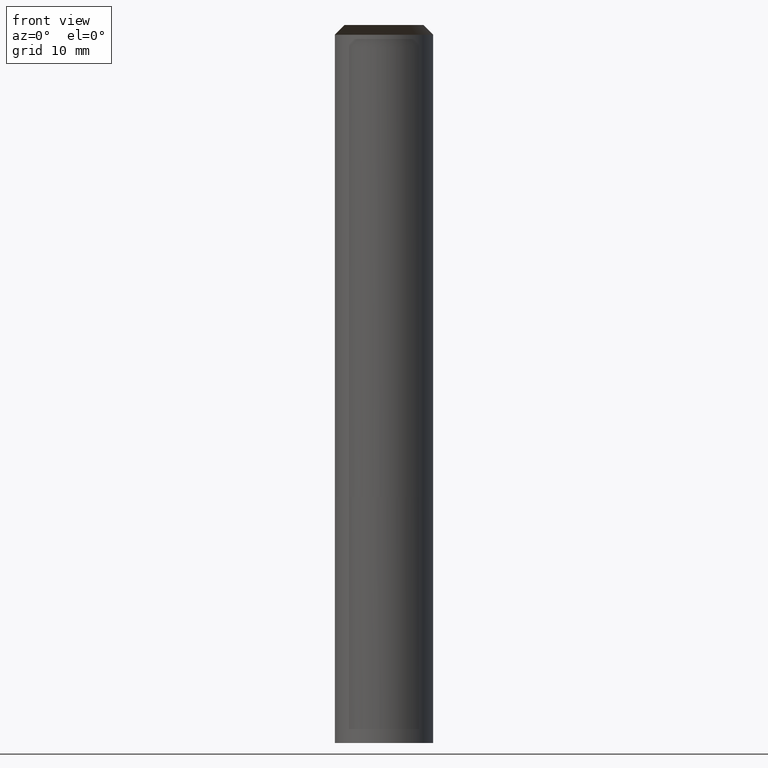
[diagram: clean part render]
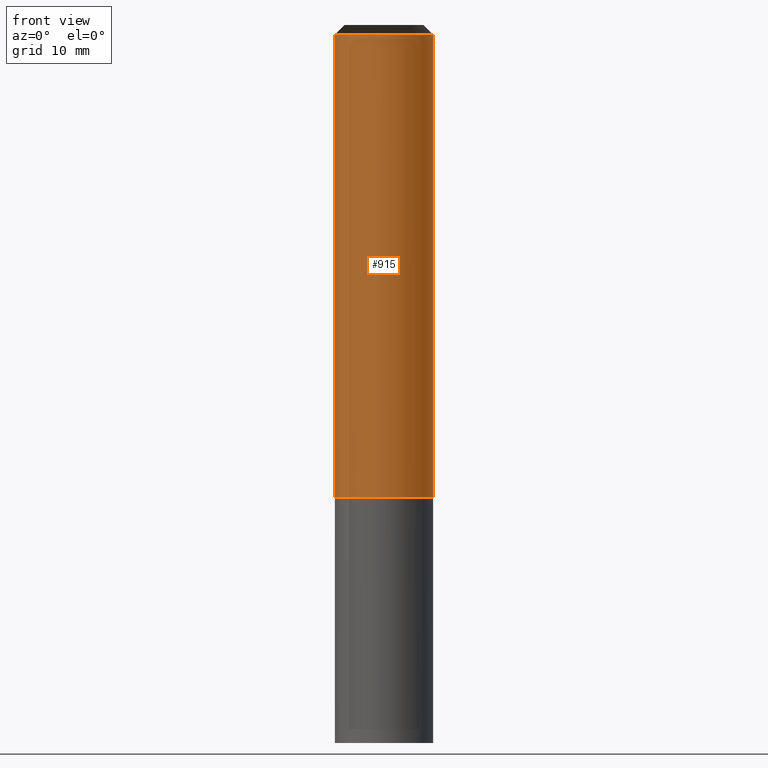
[diagram: same view with one face highlighted and labeled with its STEP entity id]
A machine part, front view. The second image highlights one B-rep face of the part: STEP entity #915.
In plain terms, the highlighted face is a freeform B-spline surface patch.
Its self-contained STEP definition (entity closure, byte-faithful):
#667=CARTESIAN_POINT('',(5.0,0.0,0.0));
#671=CARTESIAN_POINT('',(-5.0,0.0,0.0));
#675=CARTESIAN_POINT('',(-5.0,-5.0,0.0));
#676=CARTESIAN_POINT('',(0.0,-5.0,0.0));
#677=CARTESIAN_POINT('',(5.0,-5.0,0.0));
#678=CARTESIAN_POINT('',(5.0,0.0,47.0));
#682=CARTESIAN_POINT('',(-5.0,0.0,47.0));
#689=CARTESIAN_POINT('',(-5.0,-5.0,47.0));
#690=CARTESIAN_POINT('',(0.0,-5.0,47.0));
#691=CARTESIAN_POINT('',(5.0,-5.0,47.0));
#896=(
BOUNDED_SURFACE()
B_SPLINE_SURFACE(1,2,(
(#671,#675,#676,#677,#667),
(#682,#689,#690,#691,#678)
), .UNSPECIFIED.,.F.,.F.,.F.)
B_SPLINE_SURFACE_WITH_KNOTS((2,2),(3,2,3),(
0.0,1.0),(
0.0,0.5,1.0), .UNSPECIFIED.)
GEOMETRIC_REPRESENTATION_ITEM()
RATIONAL_B_SPLINE_SURFACE(((1.0,0.707106781187,1.0,0.707106781187,1.0),
(1.0,0.707106781187,1.0,0.707106781187,1.0)
))
REPRESENTATION_ITEM('')
SURFACE()
);
#897=(
BOUNDED_CURVE()
B_SPLINE_CURVE(2,(#667,#677,#676,#675,#671),.UNSPECIFIED.,.F.,.F.)
B_SPLINE_CURVE_WITH_KNOTS((3,2,3),
(0.0,0.5,1.0),.UNSPECIFIED.)
CURVE()
GEOMETRIC_REPRESENTATION_ITEM()
RATIONAL_B_SPLINE_CURVE((1.0,0.707106781187,1.0,0.707106781187,1.0))
REPRESENTATION_ITEM('')
);
#898=(
BOUNDED_CURVE()
B_SPLINE_CURVE(1,(#671,#682),.UNSPECIFIED.,.F.,.F.)
B_SPLINE_CURVE_WITH_KNOTS((2,2),
(0.0,1.0),.UNSPECIFIED.)
CURVE()
GEOMETRIC_REPRESENTATION_ITEM()
RATIONAL_B_SPLINE_CURVE((1.0,1.0))
REPRESENTATION_ITEM('')
);
#899=(
BOUNDED_CURVE()
B_SPLINE_CURVE(2,(#682,#689,#690,#691,#678),.UNSPECIFIED.,.F.,.F.)
B_SPLINE_CURVE_WITH_KNOTS((3,2,3),
(0.0,0.5,1.0),.UNSPECIFIED.)
CURVE()
GEOMETRIC_REPRESENTATION_ITEM()
RATIONAL_B_SPLINE_CURVE((1.0,0.707106781187,1.0,0.707106781187,1.0))
REPRESENTATION_ITEM('')
);
#900=(
BOUNDED_CURVE()
B_SPLINE_CURVE(1,(#678,#667),.UNSPECIFIED.,.F.,.F.)
B_SPLINE_CURVE_WITH_KNOTS((2,2),
(0.0,1.0),.UNSPECIFIED.)
CURVE()
GEOMETRIC_REPRESENTATION_ITEM()
RATIONAL_B_SPLINE_CURVE((1.0,1.0))
REPRESENTATION_ITEM('')
);
#901=VERTEX_POINT('',#667);
#902=VERTEX_POINT('',#671);
#903=VERTEX_POINT('',#678);
#904=VERTEX_POINT('',#682);
#905=EDGE_CURVE('',#901,#902,#897,.T.);
#906=EDGE_CURVE('',#902,#904,#898,.T.);
#907=EDGE_CURVE('',#904,#903,#899,.T.);
#908=EDGE_CURVE('',#903,#901,#900,.T.);
#909=ORIENTED_EDGE('',*,*,#905,.T.);
#910=ORIENTED_EDGE('',*,*,#906,.T.);
#911=ORIENTED_EDGE('',*,*,#907,.T.);
#912=ORIENTED_EDGE('',*,*,#908,.T.);
#913=EDGE_LOOP('',(#909,#910,#911,#912));
#914=FACE_OUTER_BOUND('',#913,.T.);
#915=ADVANCED_FACE('',(#914),#896,.T.);